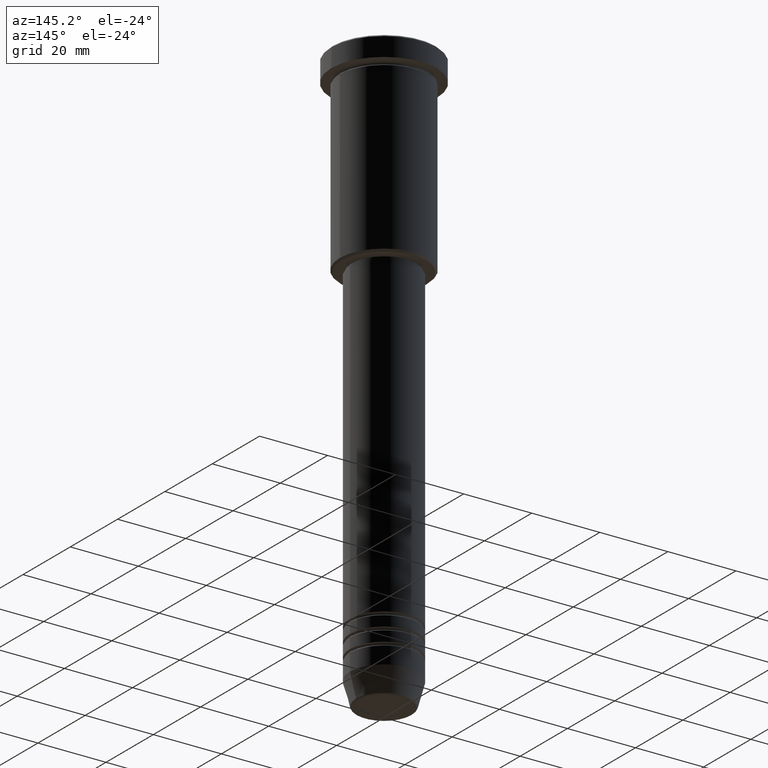
[diagram: clean part render]
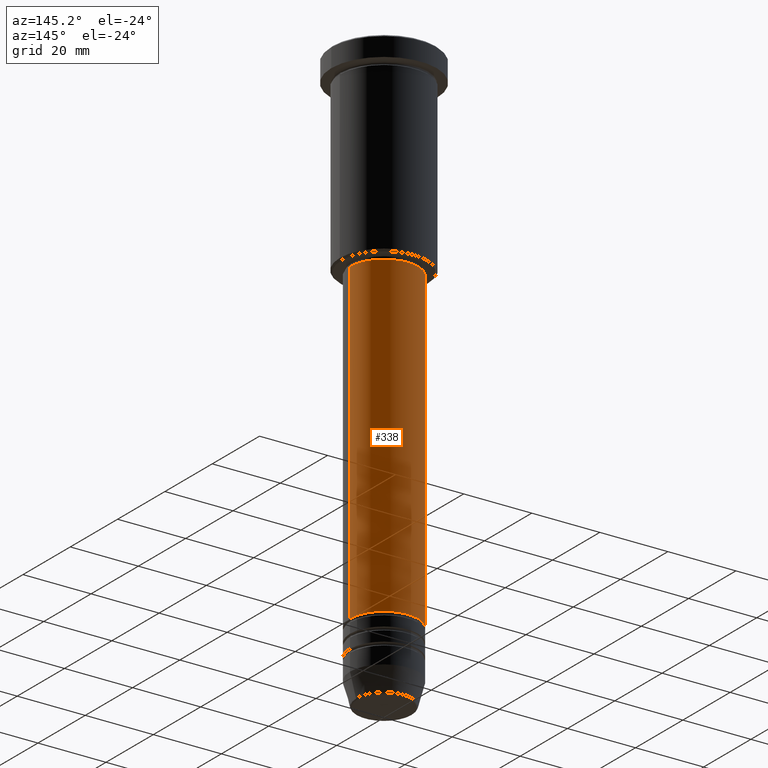
[diagram: same view with one face highlighted and labeled with its STEP entity id]
A machine part, auxiliary view. The second image highlights one B-rep face of the part: STEP entity #338.
In plain terms, the highlighted cylindrical surface (partial cylindrical patch) has radius 10 mm, axis along (-0, -0, 1).
Its self-contained STEP definition (entity closure, byte-faithful):
#53 = AXIS2_PLACEMENT_3D ( 'NONE', #1043, #96, #273 ) ;
#55 = VECTOR ( 'NONE', #1153, 1000.000000000000000 ) ;
#96 = DIRECTION ( 'NONE',  ( -0.000000000000000000, -0.000000000000000000, 1.000000000000000000 ) ) ;
#145 = AXIS2_PLACEMENT_3D ( 'NONE', #462, #279, #561 ) ;
#156 = CARTESIAN_POINT ( 'NONE',  ( -9.999999999999998224, 1.224646799147353256E-15, -56.99999999999998579 ) ) ;
#193 = VERTEX_POINT ( 'NONE', #156 ) ;
#211 = VERTEX_POINT ( 'NONE', #360 ) ;
#228 = CARTESIAN_POINT ( 'NONE',  ( 9.999999999999998224, 0.000000000000000000, -56.99999999999998579 ) ) ;
#273 = DIRECTION ( 'NONE',  ( 1.000000000000000000, 0.000000000000000000, 0.000000000000000000 ) ) ;
#279 = DIRECTION ( 'NONE',  ( -0.000000000000000000, -0.000000000000000000, 1.000000000000000000 ) ) ;
#310 = AXIS2_PLACEMENT_3D ( 'NONE', #500, #1182, #545 ) ;
#338 = ADVANCED_FACE ( 'NONE', ( #919 ), #756, .T. ) ;
#360 = CARTESIAN_POINT ( 'NONE',  ( 10.00000000000000178, 0.000000000000000000, -149.9999999999999147 ) ) ;
#362 = EDGE_CURVE ( 'NONE', #211, #1171, #686, .T. ) ;
#393 = CIRCLE ( 'NONE', #145, 9.999999999999998224 ) ;
#415 = VERTEX_POINT ( 'NONE', #577 ) ;
#462 = CARTESIAN_POINT ( 'NONE',  ( 0.000000000000000000, 0.000000000000000000, -56.99999999999998579 ) ) ;
#500 = CARTESIAN_POINT ( 'NONE',  ( 0.000000000000000000, 0.000000000000000000, -149.9999999999999147 ) ) ;
#506 = CIRCLE ( 'NONE', #310, 10.00000000000000178 ) ;
#545 = DIRECTION ( 'NONE',  ( 1.000000000000000000, 0.000000000000000000, 0.000000000000000000 ) ) ;
#561 = DIRECTION ( 'NONE',  ( 1.000000000000000000, 0.000000000000000000, 0.000000000000000000 ) ) ;
#577 = CARTESIAN_POINT ( 'NONE',  ( -10.00000000000000178, 1.224646799147353454E-15, -149.9999999999999147 ) ) ;
#599 = VECTOR ( 'NONE', #949, 1000.000000000000000 ) ;
#686 = LINE ( 'NONE', #1049, #599 ) ;
#697 = ORIENTED_EDGE ( 'NONE', *, *, #362, .F. ) ;
#713 = EDGE_CURVE ( 'NONE', #1171, #193, #393, .T. ) ;
#756 = CYLINDRICAL_SURFACE ( 'NONE', #53, 10.00000000000000000 ) ;
#788 = LINE ( 'NONE', #991, #55 ) ;
#848 = EDGE_LOOP ( 'NONE', ( #850, #1147, #1102, #697 ) ) ;
#850 = ORIENTED_EDGE ( 'NONE', *, *, #1075, .T. ) ;
#919 = FACE_OUTER_BOUND ( 'NONE', #848, .T. ) ;
#949 = DIRECTION ( 'NONE',  ( -0.000000000000000000, -0.000000000000000000, 1.000000000000000000 ) ) ;
#991 = CARTESIAN_POINT ( 'NONE',  ( -10.00000000000000000, 1.224646799147353256E-15, 0.000000000000000000 ) ) ;
#1043 = CARTESIAN_POINT ( 'NONE',  ( 0.000000000000000000, 0.000000000000000000, 0.000000000000000000 ) ) ;
#1049 = CARTESIAN_POINT ( 'NONE',  ( 10.00000000000000000, 0.000000000000000000, 0.000000000000000000 ) ) ;
#1075 = EDGE_CURVE ( 'NONE', #211, #415, #506, .T. ) ;
#1102 = ORIENTED_EDGE ( 'NONE', *, *, #713, .F. ) ;
#1133 = EDGE_CURVE ( 'NONE', #415, #193, #788, .T. ) ;
#1147 = ORIENTED_EDGE ( 'NONE', *, *, #1133, .T. ) ;
#1153 = DIRECTION ( 'NONE',  ( -0.000000000000000000, -0.000000000000000000, 1.000000000000000000 ) ) ;
#1171 = VERTEX_POINT ( 'NONE', #228 ) ;
#1182 = DIRECTION ( 'NONE',  ( -0.000000000000000000, -0.000000000000000000, 1.000000000000000000 ) ) ;